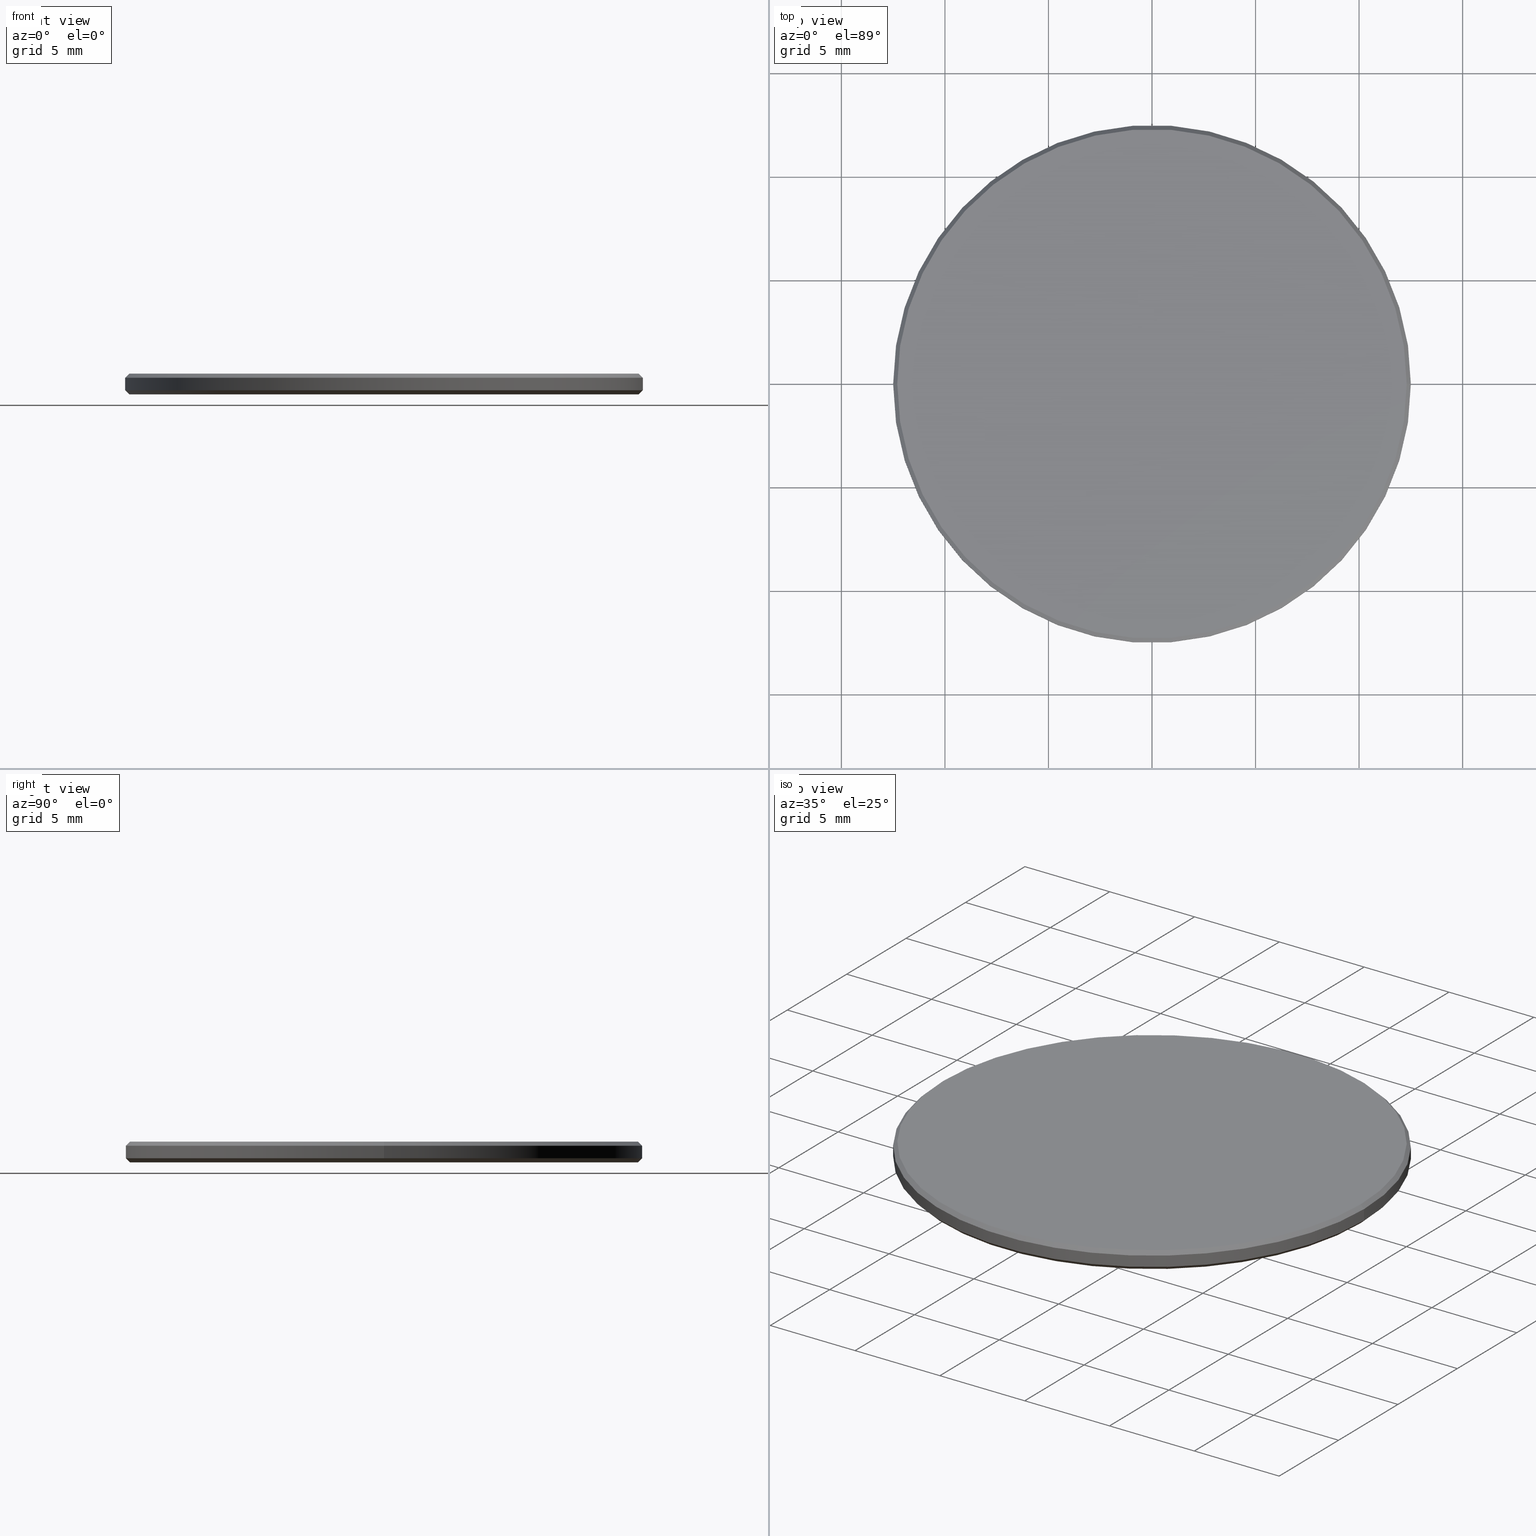
[diagram: canonical four-view strip — front | top / right | iso, engineering-drawing reading convention]
A machine part, canonical four-view strip (front | top / right | iso — engineering-drawing reading convention). The complete STEP part file that produces these views, byte-faithful:
ISO-10303-21;
HEADER;
FILE_DESCRIPTION (( 'STEP AP214' ),
    '1' );
FILE_NAME ('GNIF-190-4720-D25.STEP',
    '2024-07-19T14:26:11',
    ( '' ),
    ( '' ),
    'SwSTEP 2.0',
    'SolidWorks 2022',
    '' );
FILE_SCHEMA (( 'AUTOMOTIVE_DESIGN' ));
ENDSEC;

DATA;
#1 = CARTESIAN_POINT ( 'NONE',  ( 0.000000000000000000, 0.000000000000000000, 0.000000000000000000 ) ) ;
#2 = AXIS2_PLACEMENT_3D ( 'NONE', #86, #232, #123 ) ;
#3 = CARTESIAN_POINT ( 'NONE',  ( 12.50000000000000000, 1.530808498934191521E-15, 0.8000000000000029310 ) ) ;
#4 = COLOUR_RGB ( '',1.000000000000000000, 1.000000000000000000, 1.000000000000000000 ) ;
#5 = EDGE_CURVE ( 'NONE', #46, #105, #25, .T. ) ;
#6 = ORIENTED_EDGE ( 'NONE', *, *, #143, .T. ) ;
#7 = STYLED_ITEM ( 'NONE', ( #98 ), #226 ) ;
#8 = UNCERTAINTY_MEASURE_WITH_UNIT (LENGTH_MEASURE( 1.000000000000000082E-05 ), #83, 'distance_accuracy_value', 'NONE');
#9 = PLANE ( 'NONE',  #2 ) ;
#10 = AXIS2_PLACEMENT_3D ( 'NONE', #1, #130, #195 ) ;
#11 = CIRCLE ( 'NONE', #41, 12.29999999999999893 ) ;
#12 = EDGE_LOOP ( 'NONE', ( #117, #135, #176, #64 ) ) ;
#13 = DIRECTION ( 'NONE',  ( -1.000000000000000000, 0.000000000000000000, 0.000000000000000000 ) ) ;
#14 = ORIENTED_EDGE ( 'NONE', *, *, #35, .T. ) ;
#15 = VECTOR ( 'NONE', #240, 1000.000000000000000 ) ;
#16 = CARTESIAN_POINT ( 'NONE',  ( 12.30000000000000249, 0.000000000000000000, 0.000000000000000000 ) ) ;
#17 = EDGE_CURVE ( 'NONE', #231, #157, #103, .T. ) ;
#18 = CARTESIAN_POINT ( 'NONE',  ( 12.50000000000000000, 1.530808498934191521E-15, 0.1999999999999987899 ) ) ;
#19 = MECHANICAL_DESIGN_GEOMETRIC_PRESENTATION_REPRESENTATION (  '', ( #7 ), #61 ) ;
#20 = FILL_AREA_STYLE_COLOUR ( '', #194 ) ;
#21 = CARTESIAN_POINT ( 'NONE',  ( 0.000000000000000000, 0.000000000000000000, 0.1999999999999987899 ) ) ;
#22 = DIRECTION ( 'NONE',  ( 0.7071067811865474617, 0.000000000000000000, 0.7071067811865474617 ) ) ;
#23 = CIRCLE ( 'NONE', #126, 12.50000000000000000 ) ;
#24 = SURFACE_SIDE_STYLE ('',( #202 ) ) ;
#25 = CIRCLE ( 'NONE', #66, 12.30000000000000249 ) ;
#26 = ORIENTED_EDGE ( 'NONE', *, *, #133, .F. ) ;
#27 = ADVANCED_FACE ( 'NONE', ( #45 ), #139, .T. ) ;
#28 = ORIENTED_EDGE ( 'NONE', *, *, #5, .F. ) ;
#29 = CARTESIAN_POINT ( 'NONE',  ( 12.29999999999999893, 1.518562030942717967E-15, 1.000000000000000000 ) ) ;
#30 = AXIS2_PLACEMENT_3D ( 'NONE', #21, #181, #197 ) ;
#31 = CARTESIAN_POINT ( 'NONE',  ( 0.000000000000000000, 0.000000000000000000, 0.1999999999999987899 ) ) ;
#32 = ORIENTED_EDGE ( 'NONE', *, *, #172, .T. ) ;
#33 = ADVANCED_FACE ( 'NONE', ( #154 ), #96, .T. ) ;
#34 = ORIENTED_EDGE ( 'NONE', *, *, #141, .F. ) ;
#35 = EDGE_CURVE ( 'NONE', #105, #132, #142, .T. ) ;
#36 = AXIS2_PLACEMENT_3D ( 'NONE', #129, #92, #111 ) ;
#37 = LINE ( 'NONE', #215, #146 ) ;
#38 = DIRECTION ( 'NONE',  ( 0.000000000000000000, 0.000000000000000000, -1.000000000000000000 ) ) ;
#39 = FACE_OUTER_BOUND ( 'NONE', #43, .T. ) ;
#40 = FACE_OUTER_BOUND ( 'NONE', #116, .T. ) ;
#41 = AXIS2_PLACEMENT_3D ( 'NONE', #52, #191, #70 ) ;
#42 = FILL_AREA_STYLE ('',( #60 ) ) ;
#43 = EDGE_LOOP ( 'NONE', ( #206, #88 ) ) ;
#44 = CIRCLE ( 'NONE', #36, 12.29999999999999893 ) ;
#45 = FACE_OUTER_BOUND ( 'NONE', #89, .T. ) ;
#46 = VERTEX_POINT ( 'NONE', #16 ) ;
#47 = PRODUCT_DEFINITION_FORMATION_WITH_SPECIFIED_SOURCE ( '�κ�', '', #196, .NOT_KNOWN. ) ;
#48 = UNCERTAINTY_MEASURE_WITH_UNIT (LENGTH_MEASURE( 1.000000000000000082E-05 ), #217, 'distance_accuracy_value', 'NONE');
#49 = VERTEX_POINT ( 'NONE', #29 ) ;
#50 = ADVANCED_FACE ( 'NONE', ( #87 ), #118, .T. ) ;
#51 = CARTESIAN_POINT ( 'NONE',  ( 0.000000000000000000, 0.000000000000000000, 1.000000000000000000 ) ) ;
#52 = CARTESIAN_POINT ( 'NONE',  ( 0.000000000000000000, 0.000000000000000000, 1.000000000000000000 ) ) ;
#53 = LINE ( 'NONE', #56, #166 ) ;
#54 = AXIS2_PLACEMENT_3D ( 'NONE', #131, #221, #75 ) ;
#55 =( NAMED_UNIT ( * ) SI_UNIT ( $, .STERADIAN. ) SOLID_ANGLE_UNIT ( ) );
#56 = CARTESIAN_POINT ( 'NONE',  ( 12.50000000000000000, 0.000000000000000000, 0.1999999999999987899 ) ) ;
#57 = CARTESIAN_POINT ( 'NONE',  ( -12.50000000000000000, 0.000000000000000000, 1.000000000000000000 ) ) ;
#58 = CARTESIAN_POINT ( 'NONE',  ( -12.50000000000000000, 0.000000000000000000, 0.8000000000000029310 ) ) ;
#59 = ADVANCED_FACE ( 'NONE', ( #213 ), #147, .T. ) ;
#60 = FILL_AREA_STYLE_COLOUR ( '', #4 ) ;
#61 =( GEOMETRIC_REPRESENTATION_CONTEXT ( 3 ) GLOBAL_UNCERTAINTY_ASSIGNED_CONTEXT ( ( #185 ) ) GLOBAL_UNIT_ASSIGNED_CONTEXT ( ( #187, #97, #63 ) ) REPRESENTATION_CONTEXT ( 'NONE', 'WORKASPACE' ) );
#62 = CARTESIAN_POINT ( 'NONE',  ( 0.000000000000000000, 0.000000000000000000, 0.000000000000000000 ) ) ;
#63 =( NAMED_UNIT ( * ) SI_UNIT ( $, .STERADIAN. ) SOLID_ANGLE_UNIT ( ) );
#64 = ORIENTED_EDGE ( 'NONE', *, *, #182, .F. ) ;
#65 = CONICAL_SURFACE ( 'NONE', #175, 12.29999999999999893, 0.7853981633974612686 ) ;
#66 = AXIS2_PLACEMENT_3D ( 'NONE', #138, #234, #68 ) ;
#67 = ORIENTED_EDGE ( 'NONE', *, *, #228, .F. ) ;
#68 = DIRECTION ( 'NONE',  ( 1.000000000000000000, 0.000000000000000000, 0.000000000000000000 ) ) ;
#69 = PRODUCT_RELATED_PRODUCT_CATEGORY ( 'part', '', ( #196 ) ) ;
#70 = DIRECTION ( 'NONE',  ( 1.000000000000000000, 0.000000000000000000, 0.000000000000000000 ) ) ;
#71 = CARTESIAN_POINT ( 'NONE',  ( 12.50000000000000000, 1.530808498934191521E-15, 1.000000000000000000 ) ) ;
#72 = DIRECTION ( 'NONE',  ( -0.000000000000000000, -0.000000000000000000, 1.000000000000000000 ) ) ;
#73 = FACE_OUTER_BOUND ( 'NONE', #12, .T. ) ;
#74 = AXIS2_PLACEMENT_3D ( 'NONE', #51, #192, #13 ) ;
#75 = DIRECTION ( 'NONE',  ( 1.000000000000000000, 0.000000000000000000, 0.000000000000000000 ) ) ;
#76 = PRODUCT_DEFINITION_CONTEXT ( 'detailed design', #119, 'design' ) ;
#77 = LINE ( 'NONE', #57, #201 ) ;
#78 = DIRECTION ( 'NONE',  ( 1.000000000000000000, 0.000000000000000000, 0.000000000000000000 ) ) ;
#79 = STYLED_ITEM ( 'NONE', ( #145 ), #115 ) ;
#80 = CARTESIAN_POINT ( 'NONE',  ( 0.000000000000000000, 0.000000000000000000, 0.8000000000000029310 ) ) ;
#81 = EDGE_LOOP ( 'NONE', ( #168, #203, #113, #32 ) ) ;
#82 = APPLICATION_PROTOCOL_DEFINITION ( 'draft international standard', 'automotive_design', 1998, #178 ) ;
#83 =( LENGTH_UNIT ( ) NAMED_UNIT ( * ) SI_UNIT ( .MILLI., .METRE. ) );
#84 = ADVANCED_FACE ( 'NONE', ( #140 ), #9, .T. ) ;
#85 =( GEOMETRIC_REPRESENTATION_CONTEXT ( 3 ) GLOBAL_UNCERTAINTY_ASSIGNED_CONTEXT ( ( #48 ) ) GLOBAL_UNIT_ASSIGNED_CONTEXT ( ( #217, #163, #55 ) ) REPRESENTATION_CONTEXT ( 'NONE', 'WORKASPACE' ) );
#86 = CARTESIAN_POINT ( 'NONE',  ( 0.000000000000000000, 0.000000000000000000, 1.000000000000000000 ) ) ;
#87 = FACE_OUTER_BOUND ( 'NONE', #81, .T. ) ;
#88 = ORIENTED_EDGE ( 'NONE', *, *, #127, .T. ) ;
#89 = EDGE_LOOP ( 'NONE', ( #224, #153, #90, #67 ) ) ;
#90 = ORIENTED_EDGE ( 'NONE', *, *, #133, .T. ) ;
#91 = AXIS2_PLACEMENT_3D ( 'NONE', #180, #162, #239 ) ;
#92 = DIRECTION ( 'NONE',  ( 0.000000000000000000, 0.000000000000000000, 1.000000000000000000 ) ) ;
#93 = EDGE_CURVE ( 'NONE', #99, #49, #11, .T. ) ;
#94 = CARTESIAN_POINT ( 'NONE',  ( 12.29999999999999893, 1.506315562951244216E-15, 1.000000000000000000 ) ) ;
#95 = CIRCLE ( 'NONE', #229, 12.50000000000000000 ) ;
#96 = CONICAL_SURFACE ( 'NONE', #208, 12.50000000000000000, 0.7853981633974482790 ) ;
#97 =( NAMED_UNIT ( * ) PLANE_ANGLE_UNIT ( ) SI_UNIT ( $, .RADIAN. ) );
#98 = PRESENTATION_STYLE_ASSIGNMENT (( #186 ) ) ;
#99 = VERTEX_POINT ( 'NONE', #124 ) ;
#100 = ADVANCED_FACE ( 'NONE', ( #73 ), #65, .T. ) ;
#101 = CARTESIAN_POINT ( 'NONE',  ( 0.000000000000000000, 0.000000000000000000, 1.000000000000000000 ) ) ;
#102 = EDGE_LOOP ( 'NONE', ( #158, #171 ) ) ;
#103 = LINE ( 'NONE', #71, #106 ) ;
#104 = ORIENTED_EDGE ( 'NONE', *, *, #198, .F. ) ;
#105 = VERTEX_POINT ( 'NONE', #179 ) ;
#106 = VECTOR ( 'NONE', #211, 1000.000000000000000 ) ;
#107 = DIRECTION ( 'NONE',  ( -0.7071067811865566766, 0.000000000000000000, -0.7071067811865383579 ) ) ;
#108 = DIRECTION ( 'NONE',  ( 0.000000000000000000, 0.000000000000000000, -1.000000000000000000 ) ) ;
#109 = PLANE ( 'NONE',  #91 ) ;
#110 = CARTESIAN_POINT ( 'NONE',  ( 0.000000000000000000, 0.000000000000000000, 1.000000000000000000 ) ) ;
#111 = DIRECTION ( 'NONE',  ( 1.000000000000000000, 0.000000000000000000, 0.000000000000000000 ) ) ;
#112 = SHAPE_DEFINITION_REPRESENTATION ( #159, #226 ) ;
#113 = ORIENTED_EDGE ( 'NONE', *, *, #228, .T. ) ;
#114 = PRESENTATION_LAYER_ASSIGNMENT (  '', '', ( #79 ) ) ;
#115 = MANIFOLD_SOLID_BREP ( '����1', #230 ) ;
#116 = EDGE_LOOP ( 'NONE', ( #188, #28, #227, #212 ) ) ;
#117 = ORIENTED_EDGE ( 'NONE', *, *, #143, .F. ) ;
#118 = CYLINDRICAL_SURFACE ( 'NONE', #74, 12.50000000000000000 ) ;
#119 = APPLICATION_CONTEXT ( 'automotive_design' ) ;
#120 = ORIENTED_EDGE ( 'NONE', *, *, #167, .F. ) ;
#121 = AXIS2_PLACEMENT_3D ( 'NONE', #62, #150, #223 ) ;
#122 = DIRECTION ( 'NONE',  ( -0.000000000000000000, -0.000000000000000000, -1.000000000000000000 ) ) ;
#123 = DIRECTION ( 'NONE',  ( 1.000000000000000000, 0.000000000000000000, -0.000000000000000000 ) ) ;
#124 = CARTESIAN_POINT ( 'NONE',  ( -12.29999999999999893, 0.000000000000000000, 1.000000000000000000 ) ) ;
#125 = FILL_AREA_STYLE ('',( #20 ) ) ;
#126 = AXIS2_PLACEMENT_3D ( 'NONE', #80, #38, #200 ) ;
#127 = EDGE_CURVE ( 'NONE', #105, #46, #136, .T. ) ;
#128 = SURFACE_STYLE_FILL_AREA ( #125 ) ;
#129 = CARTESIAN_POINT ( 'NONE',  ( 0.000000000000000000, 0.000000000000000000, 1.000000000000000000 ) ) ;
#130 = DIRECTION ( 'NONE',  ( -0.000000000000000000, -0.000000000000000000, -1.000000000000000000 ) ) ;
#131 = CARTESIAN_POINT ( 'NONE',  ( 0.000000000000000000, 0.000000000000000000, 0.8000000000000029310 ) ) ;
#132 = VERTEX_POINT ( 'NONE', #219 ) ;
#133 = EDGE_CURVE ( 'NONE', #157, #132, #183, .T. ) ;
#134 = APPLICATION_PROTOCOL_DEFINITION ( 'draft international standard', 'automotive_design', 1998, #119 ) ;
#135 = ORIENTED_EDGE ( 'NONE', *, *, #93, .F. ) ;
#136 = CIRCLE ( 'NONE', #10, 12.30000000000000249 ) ;
#137 = AXIS2_PLACEMENT_3D ( 'NONE', #101, #170, #214 ) ;
#138 = CARTESIAN_POINT ( 'NONE',  ( 0.000000000000000000, 0.000000000000000000, 0.000000000000000000 ) ) ;
#139 = CYLINDRICAL_SURFACE ( 'NONE', #152, 12.50000000000000000 ) ;
#140 = FACE_OUTER_BOUND ( 'NONE', #102, .T. ) ;
#141 = EDGE_CURVE ( 'NONE', #99, #174, #37, .T. ) ;
#142 = LINE ( 'NONE', #144, #218 ) ;
#143 = EDGE_CURVE ( 'NONE', #49, #231, #177, .T. ) ;
#144 = CARTESIAN_POINT ( 'NONE',  ( -12.50000000000000000, 1.530808498934191521E-15, 0.1999999999999987899 ) ) ;
#145 = PRESENTATION_STYLE_ASSIGNMENT (( #165 ) ) ;
#146 = VECTOR ( 'NONE', #107, 1000.000000000000000 ) ;
#147 = CONICAL_SURFACE ( 'NONE', #137, 12.29999999999999893, 0.7853981633974612686 ) ;
#148 = DIRECTION ( 'NONE',  ( -0.000000000000000000, -0.000000000000000000, 1.000000000000000000 ) ) ;
#149 = SURFACE_SIDE_STYLE ('',( #128 ) ) ;
#150 = DIRECTION ( 'NONE',  ( 0.000000000000000000, 0.000000000000000000, 1.000000000000000000 ) ) ;
#151 = CIRCLE ( 'NONE', #54, 12.50000000000000000 ) ;
#152 = AXIS2_PLACEMENT_3D ( 'NONE', #233, #122, #190 ) ;
#153 = ORIENTED_EDGE ( 'NONE', *, *, #17, .T. ) ;
#154 = FACE_OUTER_BOUND ( 'NONE', #209, .T. ) ;
#155 = ORIENTED_EDGE ( 'NONE', *, *, #164, .F. ) ;
#156 = PRODUCT_DEFINITION ( 'δ֪', '', #47, #76 ) ;
#157 = VERTEX_POINT ( 'NONE', #18 ) ;
#158 = ORIENTED_EDGE ( 'NONE', *, *, #93, .T. ) ;
#159 = PRODUCT_DEFINITION_SHAPE ( 'NONE', 'NONE',  #156 ) ;
#160 = CARTESIAN_POINT ( 'NONE',  ( 0.000000000000000000, 0.000000000000000000, 0.1999999999999987899 ) ) ;
#161 = PRESENTATION_LAYER_ASSIGNMENT (  '', '', ( #7 ) ) ;
#162 = DIRECTION ( 'NONE',  ( 0.000000000000000000, 0.000000000000000000, 1.000000000000000000 ) ) ;
#163 =( NAMED_UNIT ( * ) PLANE_ANGLE_UNIT ( ) SI_UNIT ( $, .RADIAN. ) );
#164 = EDGE_CURVE ( 'NONE', #49, #99, #44, .T. ) ;
#165 = SURFACE_STYLE_USAGE ( .BOTH. , #149 ) ;
#166 = VECTOR ( 'NONE', #22, 1000.000000000000114 ) ;
#167 = EDGE_CURVE ( 'NONE', #46, #157, #53, .T. ) ;
#168 = ORIENTED_EDGE ( 'NONE', *, *, #17, .F. ) ;
#169 =( NAMED_UNIT ( * ) SI_UNIT ( $, .STERADIAN. ) SOLID_ANGLE_UNIT ( ) );
#170 = DIRECTION ( 'NONE',  ( 0.000000000000000000, 0.000000000000000000, -1.000000000000000000 ) ) ;
#171 = ORIENTED_EDGE ( 'NONE', *, *, #164, .T. ) ;
#172 = EDGE_CURVE ( 'NONE', #132, #157, #95, .T. ) ;
#173 = DIRECTION ( 'NONE',  ( -0.7071067811865474617, 8.659560562354932858E-17, 0.7071067811865474617 ) ) ;
#174 = VERTEX_POINT ( 'NONE', #58 ) ;
#175 = AXIS2_PLACEMENT_3D ( 'NONE', #110, #108, #237 ) ;
#176 = ORIENTED_EDGE ( 'NONE', *, *, #141, .T. ) ;
#177 = LINE ( 'NONE', #94, #15 ) ;
#178 = APPLICATION_CONTEXT ( 'automotive_design' ) ;
#179 = CARTESIAN_POINT ( 'NONE',  ( -12.30000000000000249, 1.518562030942718164E-15, 0.000000000000000000 ) ) ;
#180 = CARTESIAN_POINT ( 'NONE',  ( 0.000000000000000000, 0.000000000000000000, 0.000000000000000000 ) ) ;
#181 = DIRECTION ( 'NONE',  ( -0.000000000000000000, -0.000000000000000000, 1.000000000000000000 ) ) ;
#182 = EDGE_CURVE ( 'NONE', #231, #174, #23, .T. ) ;
#183 = CIRCLE ( 'NONE', #216, 12.50000000000000000 ) ;
#184 = ORIENTED_EDGE ( 'NONE', *, *, #127, .F. ) ;
#185 = UNCERTAINTY_MEASURE_WITH_UNIT (LENGTH_MEASURE( 1.000000000000000082E-05 ), #187, 'distance_accuracy_value', 'NONE');
#186 = SURFACE_STYLE_USAGE ( .BOTH. , #24 ) ;
#187 =( LENGTH_UNIT ( ) NAMED_UNIT ( * ) SI_UNIT ( .MILLI., .METRE. ) );
#188 = ORIENTED_EDGE ( 'NONE', *, *, #35, .F. ) ;
#189 = CONICAL_SURFACE ( 'NONE', #30, 12.50000000000000000, 0.7853981633974482790 ) ;
#190 = DIRECTION ( 'NONE',  ( -1.000000000000000000, 0.000000000000000000, 0.000000000000000000 ) ) ;
#191 = DIRECTION ( 'NONE',  ( 0.000000000000000000, 0.000000000000000000, 1.000000000000000000 ) ) ;
#192 = DIRECTION ( 'NONE',  ( -0.000000000000000000, -0.000000000000000000, -1.000000000000000000 ) ) ;
#193 = DIRECTION ( 'NONE',  ( 1.000000000000000000, 0.000000000000000000, 0.000000000000000000 ) ) ;
#194 = COLOUR_RGB ( '',1.000000000000000000, 1.000000000000000000, 1.000000000000000000 ) ;
#195 = DIRECTION ( 'NONE',  ( 1.000000000000000000, 0.000000000000000000, 0.000000000000000000 ) ) ;
#196 = PRODUCT ( 'GNIF-190-4720-D25', 'GNIF-190-4720-D25', '', ( #225 ) ) ;
#197 = DIRECTION ( 'NONE',  ( 1.000000000000000000, 0.000000000000000000, 0.000000000000000000 ) ) ;
#198 = EDGE_CURVE ( 'NONE', #174, #231, #151, .T. ) ;
#199 = DIRECTION ( 'NONE',  ( 1.000000000000000000, 0.000000000000000000, 0.000000000000000000 ) ) ;
#200 = DIRECTION ( 'NONE',  ( 1.000000000000000000, 0.000000000000000000, 0.000000000000000000 ) ) ;
#201 = VECTOR ( 'NONE', #204, 1000.000000000000000 ) ;
#202 = SURFACE_STYLE_FILL_AREA ( #42 ) ;
#203 = ORIENTED_EDGE ( 'NONE', *, *, #182, .T. ) ;
#204 = DIRECTION ( 'NONE',  ( -0.000000000000000000, -0.000000000000000000, -1.000000000000000000 ) ) ;
#205 =( NAMED_UNIT ( * ) PLANE_ANGLE_UNIT ( ) SI_UNIT ( $, .RADIAN. ) );
#206 = ORIENTED_EDGE ( 'NONE', *, *, #5, .T. ) ;
#207 = MECHANICAL_DESIGN_GEOMETRIC_PRESENTATION_REPRESENTATION (  '', ( #79 ), #85 ) ;
#208 = AXIS2_PLACEMENT_3D ( 'NONE', #31, #72, #193 ) ;
#209 = EDGE_LOOP ( 'NONE', ( #184, #14, #26, #120 ) ) ;
#210 = ADVANCED_FACE ( 'NONE', ( #40 ), #189, .T. ) ;
#211 = DIRECTION ( 'NONE',  ( -0.000000000000000000, -0.000000000000000000, -1.000000000000000000 ) ) ;
#212 = ORIENTED_EDGE ( 'NONE', *, *, #172, .F. ) ;
#213 = FACE_OUTER_BOUND ( 'NONE', #235, .T. ) ;
#214 = DIRECTION ( 'NONE',  ( -1.000000000000000000, 0.000000000000000000, 0.000000000000000000 ) ) ;
#215 = CARTESIAN_POINT ( 'NONE',  ( -12.29999999999999893, 0.000000000000000000, 1.000000000000000000 ) ) ;
#216 = AXIS2_PLACEMENT_3D ( 'NONE', #238, #148, #199 ) ;
#217 =( LENGTH_UNIT ( ) NAMED_UNIT ( * ) SI_UNIT ( .MILLI., .METRE. ) );
#218 = VECTOR ( 'NONE', #173, 1000.000000000000114 ) ;
#219 = CARTESIAN_POINT ( 'NONE',  ( -12.50000000000000000, 0.000000000000000000, 0.1999999999999987899 ) ) ;
#220 = ADVANCED_FACE ( 'NONE', ( #39 ), #109, .F. ) ;
#221 = DIRECTION ( 'NONE',  ( 0.000000000000000000, 0.000000000000000000, -1.000000000000000000 ) ) ;
#222 = DIRECTION ( 'NONE',  ( -0.000000000000000000, -0.000000000000000000, 1.000000000000000000 ) ) ;
#223 = DIRECTION ( 'NONE',  ( 1.000000000000000000, 0.000000000000000000, 0.000000000000000000 ) ) ;
#224 = ORIENTED_EDGE ( 'NONE', *, *, #198, .T. ) ;
#225 = PRODUCT_CONTEXT ( 'NONE', #178, 'mechanical' ) ;
#226 = ADVANCED_BREP_SHAPE_REPRESENTATION ( 'GNIF-190-4720-D25', ( #115, #121 ), #236 ) ;
#227 = ORIENTED_EDGE ( 'NONE', *, *, #167, .T. ) ;
#228 = EDGE_CURVE ( 'NONE', #174, #132, #77, .T. ) ;
#229 = AXIS2_PLACEMENT_3D ( 'NONE', #160, #222, #78 ) ;
#230 = CLOSED_SHELL ( 'NONE', ( #33, #59, #27, #50, #84, #220, #100, #210 ) ) ;
#231 = VERTEX_POINT ( 'NONE', #3 ) ;
#232 = DIRECTION ( 'NONE',  ( 0.000000000000000000, 0.000000000000000000, 1.000000000000000000 ) ) ;
#233 = CARTESIAN_POINT ( 'NONE',  ( 0.000000000000000000, 0.000000000000000000, 1.000000000000000000 ) ) ;
#234 = DIRECTION ( 'NONE',  ( -0.000000000000000000, -0.000000000000000000, -1.000000000000000000 ) ) ;
#235 = EDGE_LOOP ( 'NONE', ( #155, #6, #104, #34 ) ) ;
#236 =( GEOMETRIC_REPRESENTATION_CONTEXT ( 3 ) GLOBAL_UNCERTAINTY_ASSIGNED_CONTEXT ( ( #8 ) ) GLOBAL_UNIT_ASSIGNED_CONTEXT ( ( #83, #205, #169 ) ) REPRESENTATION_CONTEXT ( 'NONE', 'WORKASPACE' ) );
#237 = DIRECTION ( 'NONE',  ( -1.000000000000000000, 0.000000000000000000, 0.000000000000000000 ) ) ;
#238 = CARTESIAN_POINT ( 'NONE',  ( 0.000000000000000000, 0.000000000000000000, 0.1999999999999987899 ) ) ;
#239 = DIRECTION ( 'NONE',  ( 1.000000000000000000, 0.000000000000000000, -0.000000000000000000 ) ) ;
#240 = DIRECTION ( 'NONE',  ( 0.7071067811865566766, 8.659560562355045024E-17, -0.7071067811865383579 ) ) ;
ENDSEC;
END-ISO-10303-21;
